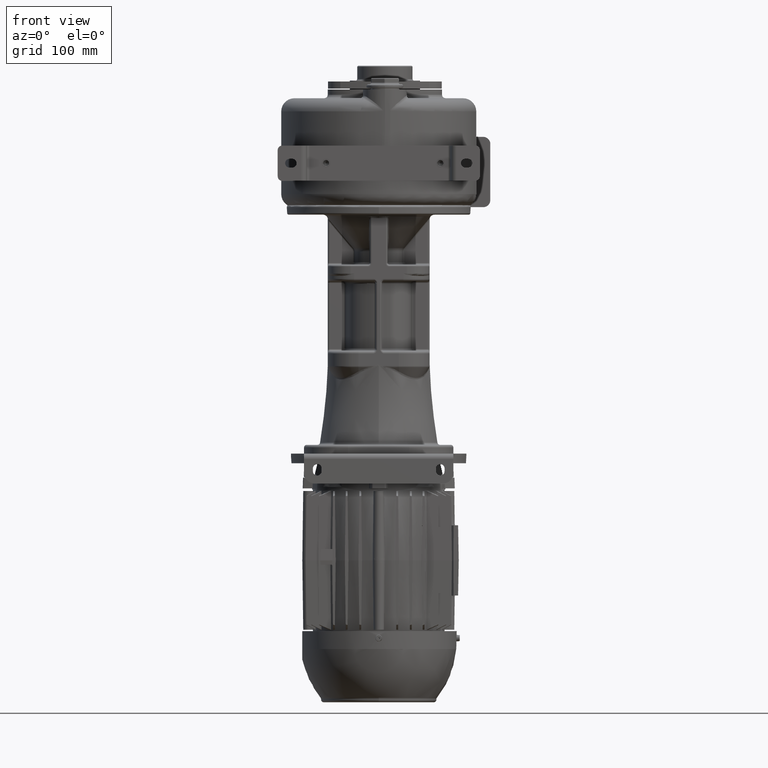
[diagram: clean part render]
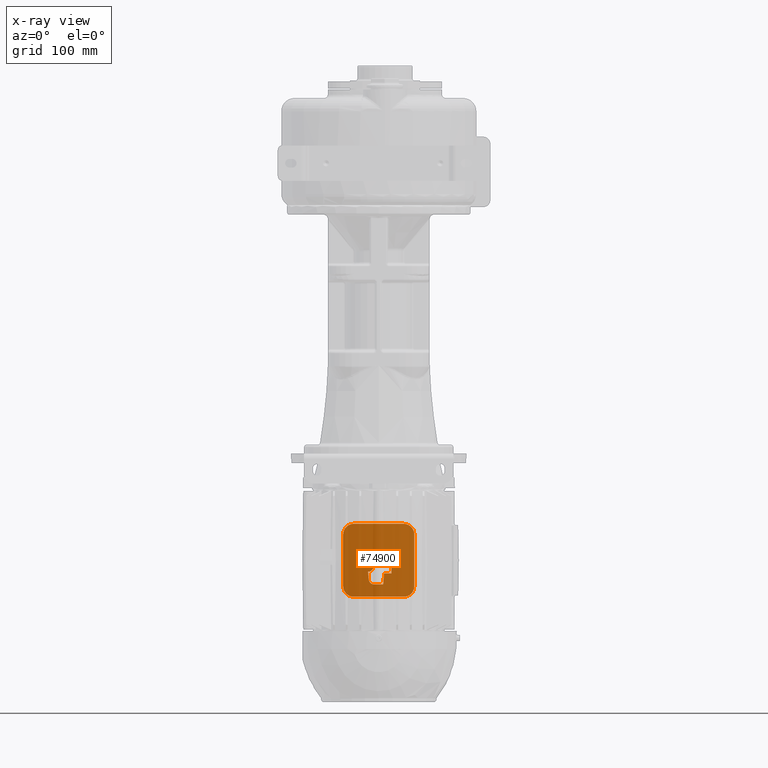
[diagram: x-ray — body ghosted, one internal face saturated and labeled with its STEP entity id]
A machine part, front view, then the same camera in x-ray: the body is ghosted and one INTERNAL B-rep face — a face not visible from any outside direction — is saturated and labeled: STEP entity #74900.
In plain terms, the highlighted planar face has unit normal (0, 1, 0).
Its self-contained STEP definition (entity closure, byte-faithful):
#22796=CARTESIAN_POINT('',(-2.838E1,2.E2,-4.226E2));
#22797=DIRECTION('',(0.E0,-1.E0,0.E0));
#22798=DIRECTION('',(0.E0,0.E0,1.E0));
#22799=AXIS2_PLACEMENT_3D('',#22796,#22797,#22798);
#22801=CARTESIAN_POINT('',(-2.838E1,2.E2,-4.814E2));
#22802=DIRECTION('',(0.E0,-1.E0,0.E0));
#22803=DIRECTION('',(-1.E0,0.E0,1.879121284655E-14));
#22804=AXIS2_PLACEMENT_3D('',#22801,#22802,#22803);
#22806=DIRECTION('',(1.E0,0.E0,-1.515824502956E-14));
#22807=VECTOR('',#22806,1.499999999999E1);
#22808=CARTESIAN_POINT('',(1.201621170687E-11,2.E2,-4.52E2));
#22809=LINE('',#22808,#22807);
#22810=CARTESIAN_POINT('',(-8.716479881744E-14,2.E2,-4.58E2));
#22811=DIRECTION('',(0.E0,1.E0,0.E0));
#22812=DIRECTION('',(-9.961946980917E-1,0.E0,8.715574274764E-2));
#22813=AXIS2_PLACEMENT_3D('',#22810,#22811,#22812);
#22815=DIRECTION('',(8.715574274765E-2,0.E0,9.961946980917E-1));
#22816=VECTOR('',#22815,2.053683799856E0);
#22817=CARTESIAN_POINT('',(-6.156158525494E0,2.E2,-4.595229344565E2));
#22818=LINE('',#22817,#22816);
#22819=CARTESIAN_POINT('',(-1.213332671404E1,2.E2,-4.59E2));
#22820=DIRECTION('',(0.E0,1.E0,0.E0));
#22821=DIRECTION('',(9.961946980917E-1,0.E0,-8.715574274764E-2));
#22822=AXIS2_PLACEMENT_3D('',#22819,#22820,#22821);
#22824=DIRECTION('',(-8.715574274765E-2,0.E0,9.961946980917E-1));
#22825=VECTOR('',#22824,8.690646551460E0);
#22826=CARTESIAN_POINT('',(-1.137588695889E1,2.E2,-4.736575760176E2));
#22827=LINE('',#22826,#22825);
#22828=CARTESIAN_POINT('',(-5.E0,2.E2,-4.730997581887E2));
#22829=DIRECTION('',(0.E0,1.E0,0.E0));
#22830=DIRECTION('',(0.E0,0.E0,-1.E0));
#22831=AXIS2_PLACEMENT_3D('',#22828,#22829,#22830);
#22833=DIRECTION('',(1.E0,0.E0,1.705302565824E-14));
#22834=VECTOR('',#22833,1.E1);
#22835=CARTESIAN_POINT('',(-5.E0,2.E2,-4.795E2));
#22836=LINE('',#22835,#22834);
#22837=DIRECTION('',(-8.715574274766E-2,0.E0,-9.961946980917E-1));
#22838=VECTOR('',#22837,1.254774796929E1);
#22839=CARTESIAN_POINT('',(6.093608294074E0,2.E2,-4.67E2));
#22840=LINE('',#22839,#22838);
#22841=DIRECTION('',(-1.E0,0.E0,-2.755551035879E-14));
#22842=VECTOR('',#22841,8.251477562298E0);
#22843=CARTESIAN_POINT('',(1.434508585637E1,2.E2,-4.67E2));
#22844=LINE('',#22843,#22842);
#22845=DIRECTION('',(-4.361938736534E-2,0.E0,-9.990482215819E-1));
#22846=VECTOR('',#22845,1.501429027745E1);
#22847=CARTESIAN_POINT('',(1.5E1,2.E2,-4.52E2));
#22848=LINE('',#22847,#22846);
#22849=DIRECTION('',(0.E0,0.E0,1.E0));
#22850=VECTOR('',#22849,5.88E1);
#22851=CARTESIAN_POINT('',(-4.048E1,2.E2,-4.814E2));
#22852=LINE('',#22851,#22850);
#28201=DIRECTION('',(-1.E0,0.E0,-1.602097444409E-14));
#28202=VECTOR('',#28201,5.676900022199E1);
#28203=CARTESIAN_POINT('',(2.838900022199E1,2.E2,-4.935E2));
#28204=LINE('',#28203,#28202);
#28209=CARTESIAN_POINT('',(4.048900022199E1,2.E2,-4.814E2));
#28210=CARTESIAN_POINT('',(4.048900022199E1,2.E2,-4.815321016343E2));
#28211=CARTESIAN_POINT('',(4.048467688961E1,2.E2,-4.817961482565E2));
#28212=CARTESIAN_POINT('',(4.046521847972E1,2.E2,-4.821920306181E2));
#28213=CARTESIAN_POINT('',(4.043281940638E1,2.E2,-4.825868783061E2));
#28214=CARTESIAN_POINT('',(4.038756997565E1,2.E2,-4.829800168020E2));
#28215=CARTESIAN_POINT('',(4.032956643641E1,2.E2,-4.833710220556E2));
#28216=CARTESIAN_POINT('',(4.025885328388E1,2.E2,-4.837597938022E2));
#28217=CARTESIAN_POINT('',(4.017548340956E1,2.E2,-4.841460670503E2));
#28218=CARTESIAN_POINT('',(4.007949468809E1,2.E2,-4.845296118190E2));
#28219=CARTESIAN_POINT('',(3.997093970519E1,2.E2,-4.849101207108E2));
#28220=CARTESIAN_POINT('',(3.984978848309E1,2.E2,-4.852875146268E2));
#28221=CARTESIAN_POINT('',(3.971621456499E1,2.E2,-4.856610621722E2));
#28222=CARTESIAN_POINT('',(3.957057477891E1,2.E2,-4.860297639216E2));
#28223=CARTESIAN_POINT('',(3.941305322001E1,2.E2,-4.863932542336E2));
#28224=CARTESIAN_POINT('',(3.924364094166E1,2.E2,-4.867515521118E2));
#28225=CARTESIAN_POINT('',(3.906272975128E1,2.E2,-4.871038324921E2));
#28226=CARTESIAN_POINT('',(3.887060999119E1,2.E2,-4.874496263176E2));
#28227=CARTESIAN_POINT('',(3.866738070866E1,2.E2,-4.877888190665E2));
#28228=CARTESIAN_POINT('',(3.845315801964E1,2.E2,-4.881212244929E2));
#28229=CARTESIAN_POINT('',(3.822815332104E1,2.E2,-4.884465040373E2));
#28230=CARTESIAN_POINT('',(3.799256352413E1,2.E2,-4.887643580427E2));
#28231=CARTESIAN_POINT('',(3.774653608001E1,2.E2,-4.890745579129E2));
#28232=CARTESIAN_POINT('',(3.749015924093E1,2.E2,-4.893769242788E2));
#28233=CARTESIAN_POINT('',(3.722394552824E1,2.E2,-4.896707990968E2));
#28234=CARTESIAN_POINT('',(3.694842090087E1,2.E2,-4.899556202039E2));
#28235=CARTESIAN_POINT('',(3.666377050125E1,2.E2,-4.902312238624E2));
#28236=CARTESIAN_POINT('',(3.637019452453E1,2.E2,-4.904974096670E2));
#28237=CARTESIAN_POINT('',(3.606821894007E1,2.E2,-4.907537079807E2));
#28238=CARTESIAN_POINT('',(3.575819846144E1,2.E2,-4.909998504492E2));
#28239=CARTESIAN_POINT('',(3.544036313757E1,2.E2,-4.912356741280E2));
#28240=CARTESIAN_POINT('',(3.511497126187E1,2.E2,-4.914609907968E2));
#28241=CARTESIAN_POINT('',(3.478229803985E1,2.E2,-4.916756021014E2));
#28242=CARTESIAN_POINT('',(3.444266678421E1,2.E2,-4.918792850139E2));
#28243=CARTESIAN_POINT('',(3.409641294914E1,2.E2,-4.920718218543E2));
#28244=CARTESIAN_POINT('',(3.374389313059E1,2.E2,-4.922529944997E2));
#28245=CARTESIAN_POINT('',(3.338563644244E1,2.E2,-4.924225208902E2));
#28246=CARTESIAN_POINT('',(3.302212275252E1,2.E2,-4.925801836073E2));
#28247=CARTESIAN_POINT('',(3.265361422282E1,2.E2,-4.927258731803E2));
#28248=CARTESIAN_POINT('',(3.228057285830E1,2.E2,-4.928594055579E2));
#28249=CARTESIAN_POINT('',(3.190345649320E1,2.E2,-4.929806252700E2));
#28250=CARTESIAN_POINT('',(3.152264970910E1,2.E2,-4.930894192485E2));
#28251=CARTESIAN_POINT('',(3.113844252620E1,2.E2,-4.931857059532E2));
#28252=CARTESIAN_POINT('',(3.075124485281E1,2.E2,-4.932693769330E2));
#28253=CARTESIAN_POINT('',(3.036147017844E1,2.E2,-4.933403385745E2));
#28254=CARTESIAN_POINT('',(2.996953097801E1,2.E2,-4.933985104975E2));
#28255=CARTESIAN_POINT('',(2.957589117527E1,2.E2,-4.934438207355E2));
#28256=CARTESIAN_POINT('',(2.918097402046E1,2.E2,-4.934762212762E2));
#28257=CARTESIAN_POINT('',(2.878517748331E1,2.E2,-4.934956752164E2));
#28258=CARTESIAN_POINT('',(2.852111400346E1,2.E2,-4.935E2));
#28259=CARTESIAN_POINT('',(2.838900022199E1,2.E2,-4.935E2));
#28265=DIRECTION('',(0.E0,0.E0,-1.E0));
#28266=VECTOR('',#28265,5.88E1);
#28267=CARTESIAN_POINT('',(4.048900022199E1,2.E2,-4.226E2));
#28268=LINE('',#28267,#28266);
#28273=CARTESIAN_POINT('',(2.838900022200E1,2.E2,-4.105E2));
#28274=CARTESIAN_POINT('',(2.852111221819E1,2.E2,-4.105E2));
#28275=CARTESIAN_POINT('',(2.878517215971E1,2.E2,-4.105043246662E2));
#28276=CARTESIAN_POINT('',(2.918096354309E1,2.E2,-4.105237780934E2));
#28277=CARTESIAN_POINT('',(2.957587552699E1,2.E2,-4.105561777796E2));
#28278=CARTESIAN_POINT('',(2.996951034472E1,2.E2,-4.106014868382E2));
#28279=CARTESIAN_POINT('',(3.036144511685E1,2.E2,-4.106596573332E2));
#28280=CARTESIAN_POINT('',(3.075121651546E1,2.E2,-4.107306174510E2));
#28281=CARTESIAN_POINT('',(3.113841357654E1,2.E2,-4.108142872953E2));
#28282=CARTESIAN_POINT('',(3.152262059375E1,2.E2,-4.109105729569E2));
#28283=CARTESIAN_POINT('',(3.190342542965E1,2.E2,-4.110193653516E2));
#28284=CARTESIAN_POINT('',(3.228053701507E1,2.E2,-4.111405823285E2));
#28285=CARTESIAN_POINT('',(3.265357452109E1,2.E2,-4.112741119320E2));
#28286=CARTESIAN_POINT('',(3.302207741788E1,2.E2,-4.114197976942E2));
#28287=CARTESIAN_POINT('',(3.338558693756E1,2.E2,-4.115774566768E2));
#28288=CARTESIAN_POINT('',(3.374384506591E1,2.E2,-4.117469818276E2));
#28289=CARTESIAN_POINT('',(3.409635350373E1,2.E2,-4.119281466533E2));
#28290=CARTESIAN_POINT('',(3.444258224037E1,2.E2,-4.121206665420E2));
#28291=CARTESIAN_POINT('',(3.478219777720E1,2.E2,-4.123243355548E2));
#28292=CARTESIAN_POINT('',(3.511488522313E1,2.E2,-4.125389513676E2));
#28293=CARTESIAN_POINT('',(3.544028966461E1,2.E2,-4.127642733427E2));
#28294=CARTESIAN_POINT('',(3.575809370612E1,2.E2,-4.130000700273E2));
#28295=CARTESIAN_POINT('',(3.606806672847E1,2.E2,-4.132461677470E2));
#28296=CARTESIAN_POINT('',(3.637002701408E1,2.E2,-4.135024435762E2));
#28297=CARTESIAN_POINT('',(3.666359985084E1,2.E2,-4.137686163699E2));
#28298=CARTESIAN_POINT('',(3.694825150429E1,2.E2,-4.140442103746E2));
#28299=CARTESIAN_POINT('',(3.722377934317E1,2.E2,-4.143290235026E2));
#28300=CARTESIAN_POINT('',(3.748998967344E1,2.E2,-4.146228825932E2));
#28301=CARTESIAN_POINT('',(3.774637136829E1,2.E2,-4.149252406328E2));
#28302=CARTESIAN_POINT('',(3.799245190207E1,2.E2,-4.152354947627E2));
#28303=CARTESIAN_POINT('',(3.822808318975E1,2.E2,-4.155533977200E2));
#28304=CARTESIAN_POINT('',(3.845307431167E1,2.E2,-4.158786512385E2));
#28305=CARTESIAN_POINT('',(3.866727958217E1,2.E2,-4.162110184592E2));
#28306=CARTESIAN_POINT('',(3.887053130202E1,2.E2,-4.165502358262E2));
#28307=CARTESIAN_POINT('',(3.906269777281E1,2.E2,-4.168961054467E2));
#28308=CARTESIAN_POINT('',(3.924364749023E1,2.E2,-4.172484596191E2));
#28309=CARTESIAN_POINT('',(3.941306972166E1,2.E2,-4.176067826426E2));
#28310=CARTESIAN_POINT('',(3.957057817092E1,2.E2,-4.179702445176E2));
#28311=CARTESIAN_POINT('',(3.971623359142E1,2.E2,-4.183389857709E2));
#28312=CARTESIAN_POINT('',(3.984983809070E1,2.E2,-4.187126283702E2));
#28313=CARTESIAN_POINT('',(3.997100250173E1,2.E2,-4.190900855768E2));
#28314=CARTESIAN_POINT('',(4.007954965159E1,2.E2,-4.194705938811E2));
#28315=CARTESIAN_POINT('',(4.017552943789E1,2.E2,-4.198541316453E2));
#28316=CARTESIAN_POINT('',(4.025888441385E1,2.E2,-4.202403655066E2));
#28317=CARTESIAN_POINT('',(4.032958465237E1,2.E2,-4.206290915363E2));
#28318=CARTESIAN_POINT('',(4.038757801645E1,2.E2,-4.210200482617E2));
#28319=CARTESIAN_POINT('',(4.043282161008E1,2.E2,-4.214131471861E2));
#28320=CARTESIAN_POINT('',(4.046521905518E1,2.E2,-4.218079792436E2));
#28321=CARTESIAN_POINT('',(4.048467704162E1,2.E2,-4.222038578218E2));
#28322=CARTESIAN_POINT('',(4.048900022199E1,2.E2,-4.224679001499E2));
#28323=CARTESIAN_POINT('',(4.048900022199E1,2.E2,-4.226E2));
#28329=DIRECTION('',(1.E0,-2.383119948558E-13,1.602097444408E-14));
#28330=VECTOR('',#28329,5.676900022200E1);
#28331=CARTESIAN_POINT('',(-2.838E1,2.E2,-4.105E2));
#28332=LINE('',#28331,#28330);
#40658=CARTESIAN_POINT('',(4.048900022199E1,2.E2,-4.226E2));
#40660=VERTEX_POINT('',#40658);
#40662=CARTESIAN_POINT('',(2.838900022200E1,2.E2,-4.105E2));
#40664=VERTEX_POINT('',#40662);
#40666=VERTEX_POINT('',#28209);
#40667=VERTEX_POINT('',#28259);
#40673=CARTESIAN_POINT('',(-4.048E1,2.E2,-4.226E2));
#40675=VERTEX_POINT('',#40673);
#40676=CARTESIAN_POINT('',(-2.838E1,2.E2,-4.105E2));
#40677=VERTEX_POINT('',#40676);
#40682=CARTESIAN_POINT('',(-4.048E1,2.E2,-4.814E2));
#40683=CARTESIAN_POINT('',(-2.838E1,2.E2,-4.935E2));
#40684=VERTEX_POINT('',#40682);
#40685=VERTEX_POINT('',#40683);
#40819=CARTESIAN_POINT('',(1.201621170687E-11,2.E2,-4.52E2));
#40820=CARTESIAN_POINT('',(1.5E1,2.E2,-4.52E2));
#40821=VERTEX_POINT('',#40819);
#40822=VERTEX_POINT('',#40820);
#40823=CARTESIAN_POINT('',(1.434508585637E1,2.E2,-4.67E2));
#40824=VERTEX_POINT('',#40823);
#40825=CARTESIAN_POINT('',(-5.E0,2.E2,-4.795E2));
#40826=CARTESIAN_POINT('',(5.E0,2.E2,-4.795E2));
#40827=VERTEX_POINT('',#40825);
#40828=VERTEX_POINT('',#40826);
#40829=CARTESIAN_POINT('',(6.093608294074E0,2.E2,-4.67E2));
#40830=VERTEX_POINT('',#40829);
#40831=CARTESIAN_POINT('',(-1.137588695889E1,2.E2,-4.736575760176E2));
#40832=VERTEX_POINT('',#40831);
#40833=CARTESIAN_POINT('',(-5.977168188549E0,2.E2,-4.574770655435E2));
#40834=VERTEX_POINT('',#40833);
#40835=CARTESIAN_POINT('',(-1.213332671404E1,2.E2,-4.65E2));
#40836=VERTEX_POINT('',#40835);
#44318=CARTESIAN_POINT('',(-6.156158525494E0,2.E2,-4.595229344565E2));
#44319=VERTEX_POINT('',#44318);
#74856=CARTESIAN_POINT('',(-4.048E1,2.E2,-4.935E2));
#74857=DIRECTION('',(0.E0,1.E0,0.E0));
#74858=DIRECTION('',(-1.E0,0.E0,-1.476638648832E-14));
#74859=AXIS2_PLACEMENT_3D('',#74856,#74857,#74858);
#74860=PLANE('',#74859);
#74862=ORIENTED_EDGE('',*,*,#74861,.T.);
#74864=ORIENTED_EDGE('',*,*,#74863,.F.);
#74866=ORIENTED_EDGE('',*,*,#74865,.T.);
#74868=ORIENTED_EDGE('',*,*,#74867,.T.);
#74870=ORIENTED_EDGE('',*,*,#74869,.T.);
#74872=ORIENTED_EDGE('',*,*,#74871,.T.);
#74874=ORIENTED_EDGE('',*,*,#74873,.T.);
#74876=ORIENTED_EDGE('',*,*,#74875,.F.);
#74877=EDGE_LOOP('',(#74862,#74864,#74866,#74868,#74870,#74872,#74874,#74876));
#74878=FACE_OUTER_BOUND('',#74877,.F.);
#74879=ORIENTED_EDGE('',*,*,#74839,.F.);
#74881=ORIENTED_EDGE('',*,*,#74880,.F.);
#74883=ORIENTED_EDGE('',*,*,#74882,.F.);
#74885=ORIENTED_EDGE('',*,*,#74884,.T.);
#74887=ORIENTED_EDGE('',*,*,#74886,.F.);
#74889=ORIENTED_EDGE('',*,*,#74888,.F.);
#74891=ORIENTED_EDGE('',*,*,#74890,.T.);
#74893=ORIENTED_EDGE('',*,*,#74892,.F.);
#74895=ORIENTED_EDGE('',*,*,#74894,.F.);
#74897=ORIENTED_EDGE('',*,*,#74896,.F.);
#74898=EDGE_LOOP('',(#74879,#74881,#74883,#74885,#74887,#74889,#74891,#74893,
#74895,#74897));
#74899=FACE_BOUND('',#74898,.F.);
#74900=ADVANCED_FACE('',(#74878,#74899),#74860,.F.);
#22800=CIRCLE('',#22799,1.21E1);
#22805=CIRCLE('',#22804,1.21E1);
#22814=CIRCLE('',#22813,5.999999999998E0);
#22823=CIRCLE('',#22822,6.E0);
#22832=CIRCLE('',#22831,6.400241811272E0);
#28260=B_SPLINE_CURVE_WITH_KNOTS('',3,(#28209,#28210,#28211,#28212,#28213,
#28214,#28215,#28216,#28217,#28218,#28219,#28220,#28221,#28222,#28223,#28224,
#28225,#28226,#28227,#28228,#28229,#28230,#28231,#28232,#28233,#28234,#28235,
#28236,#28237,#28238,#28239,#28240,#28241,#28242,#28243,#28244,#28245,#28246,
#28247,#28248,#28249,#28250,#28251,#28252,#28253,#28254,#28255,#28256,#28257,
#28258,#28259),.UNSPECIFIED.,.F.,.F.,(4,1,1,1,1,1,1,1,1,1,1,1,1,1,1,1,1,1,1,1,1,
1,1,1,1,1,1,1,1,1,1,1,1,1,1,1,1,1,1,1,1,1,1,1,1,1,1,1,4),(0.E0,
2.083333333333E-2,4.166666666667E-2,6.25E-2,8.333333333333E-2,1.041666666667E-1,
1.25E-1,1.458333333333E-1,1.666666666667E-1,1.875E-1,2.083333333333E-1,
2.291666666667E-1,2.5E-1,2.708333333333E-1,2.916666666667E-1,3.125E-1,
3.333333333333E-1,3.541666666667E-1,3.75E-1,3.958333333333E-1,4.166666666667E-1,
4.375E-1,4.583333333333E-1,4.791666666667E-1,5.E-1,5.208333333333E-1,
5.416666666667E-1,5.625E-1,5.833333333333E-1,6.041666666667E-1,6.25E-1,
6.458333333333E-1,6.666666666667E-1,6.875E-1,7.083333333333E-1,
7.291666666667E-1,7.5E-1,7.708333333333E-1,7.916666666667E-1,8.125E-1,
8.333333333333E-1,8.541666666667E-1,8.75E-1,8.958333333333E-1,9.166666666667E-1,
9.375E-1,9.583333333333E-1,9.791666666667E-1,1.E0),.UNSPECIFIED.);
#28324=B_SPLINE_CURVE_WITH_KNOTS('',3,(#28273,#28274,#28275,#28276,#28277,
#28278,#28279,#28280,#28281,#28282,#28283,#28284,#28285,#28286,#28287,#28288,
#28289,#28290,#28291,#28292,#28293,#28294,#28295,#28296,#28297,#28298,#28299,
#28300,#28301,#28302,#28303,#28304,#28305,#28306,#28307,#28308,#28309,#28310,
#28311,#28312,#28313,#28314,#28315,#28316,#28317,#28318,#28319,#28320,#28321,
#28322,#28323),.UNSPECIFIED.,.F.,.F.,(4,1,1,1,1,1,1,1,1,1,1,1,1,1,1,1,1,1,1,1,1,
1,1,1,1,1,1,1,1,1,1,1,1,1,1,1,1,1,1,1,1,1,1,1,1,1,1,1,4),(0.E0,
2.083333333333E-2,4.166666666667E-2,6.25E-2,8.333333333333E-2,1.041666666667E-1,
1.25E-1,1.458333333333E-1,1.666666666667E-1,1.875E-1,2.083333333333E-1,
2.291666666667E-1,2.5E-1,2.708333333333E-1,2.916666666667E-1,3.125E-1,
3.333333333333E-1,3.541666666667E-1,3.75E-1,3.958333333333E-1,4.166666666667E-1,
4.375E-1,4.583333333333E-1,4.791666666667E-1,5.E-1,5.208333333333E-1,
5.416666666667E-1,5.625E-1,5.833333333333E-1,6.041666666667E-1,6.25E-1,
6.458333333333E-1,6.666666666667E-1,6.875E-1,7.083333333333E-1,
7.291666666667E-1,7.5E-1,7.708333333333E-1,7.916666666667E-1,8.125E-1,
8.333333333333E-1,8.541666666667E-1,8.75E-1,8.958333333333E-1,9.166666666667E-1,
9.375E-1,9.583333333333E-1,9.791666666667E-1,1.E0),.UNSPECIFIED.);
#74839=EDGE_CURVE('',#40821,#40822,#22809,.T.);
#74861=EDGE_CURVE('',#40684,#40675,#22852,.T.);
#74863=EDGE_CURVE('',#40677,#40675,#22800,.T.);
#74865=EDGE_CURVE('',#40677,#40664,#28332,.T.);
#74867=EDGE_CURVE('',#40664,#40660,#28324,.T.);
#74869=EDGE_CURVE('',#40660,#40666,#28268,.T.);
#74871=EDGE_CURVE('',#40666,#40667,#28260,.T.);
#74873=EDGE_CURVE('',#40667,#40685,#28204,.T.);
#74875=EDGE_CURVE('',#40684,#40685,#22805,.T.);
#74880=EDGE_CURVE('',#40834,#40821,#22814,.T.);
#74882=EDGE_CURVE('',#44319,#40834,#22818,.T.);
#74884=EDGE_CURVE('',#44319,#40836,#22823,.T.);
#74886=EDGE_CURVE('',#40832,#40836,#22827,.T.);
#74888=EDGE_CURVE('',#40827,#40832,#22832,.T.);
#74890=EDGE_CURVE('',#40827,#40828,#22836,.T.);
#74892=EDGE_CURVE('',#40830,#40828,#22840,.T.);
#74894=EDGE_CURVE('',#40824,#40830,#22844,.T.);
#74896=EDGE_CURVE('',#40822,#40824,#22848,.T.);